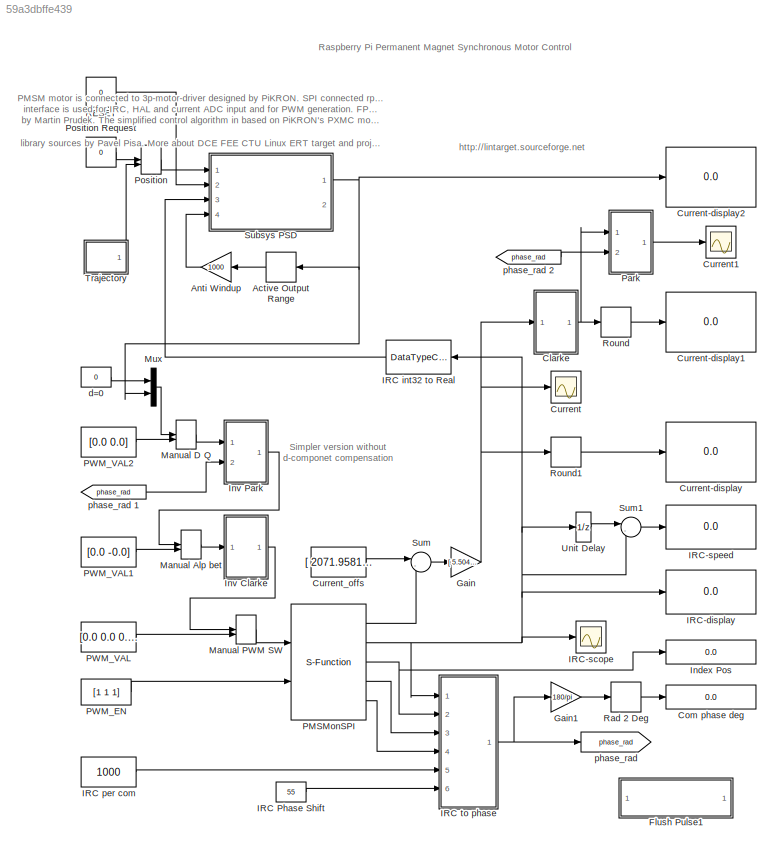
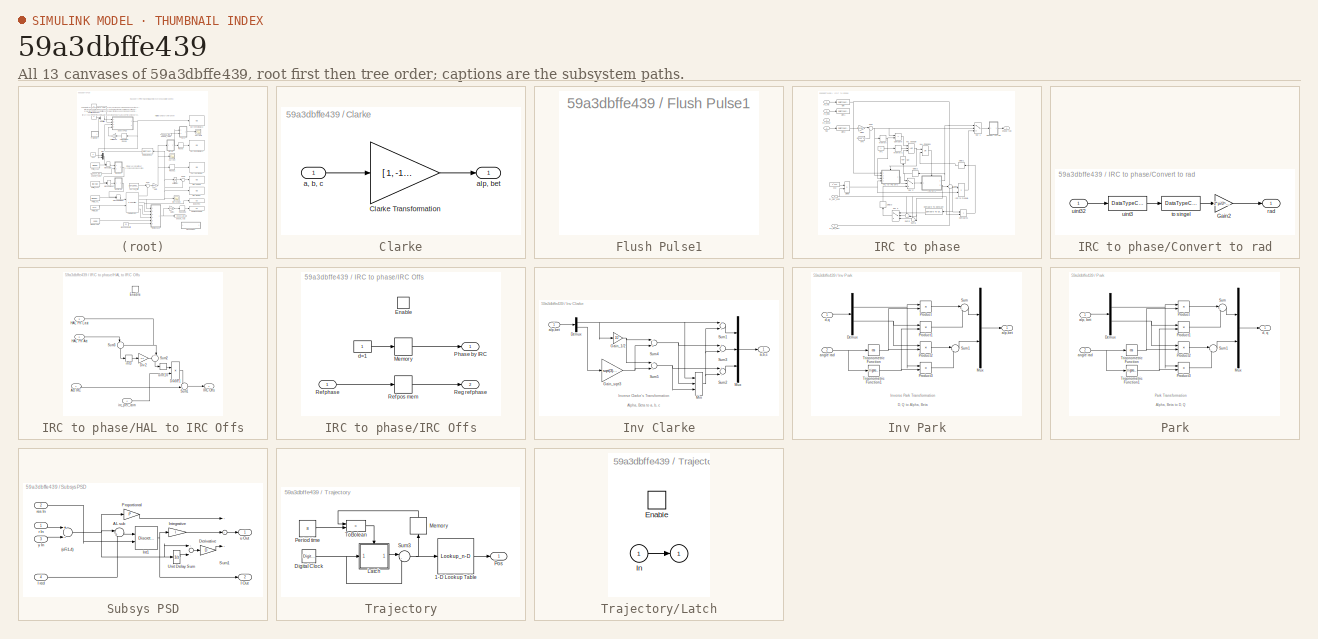
[diagram: thumbnail index - all 13 canvases of the model, root first then tree order]
MODEL slx_59a3dbffe439
KIND model
BLOCK [Constant]   RESET
  OpenFcn = if get_param(gcbh,'value')=='0' set_param(gcbh,'value','1'); else set_param(gcbh,'value','0'); end;
  Value = 0
BLOCK [DeadZone] Active Output Range
  LinearizeAsGain = off
  LowerValue = -1
  SaturateOnIntegerOverflow = off
  UpperValue = 1
BLOCK [Gain] Anti Windup
  Gain = 1000
  OutDataTypeStr = Inherit: Inherit via internal rule
  ParamDataTypeStr = Inherit: Inherit via internal rule
  SaturateOnIntegerOverflow = off
BLOCK [SubSystem] Clarke
  FunctionWithSeparateData = off
  MaskHideContents = off
  MinAlgLoopOccurrences = off
  Opaque = off
  Ports = [1, 1]
  PropExecContextOutsideSubsystem = off
  RTWSystemCode = Auto
  RequestExecContextInheritance = off
BLOCK [Gain] Clarke/Clarke Transformation
  Gain = [ 1, -1/2, -1/2 ; 0, sqrt(3)/2, -sqrt(3)/2 ]
  Multiplication = Matrix(K*u)
  OutDataTypeStr = Inherit: Inherit via internal rule
  ParamDataTypeStr = Inherit: Inherit via internal rule
  SaturateOnIntegerOverflow = off
BLOCK [Inport] Clarke/a, b, c
  IconDisplay = Port number
BLOCK [Outport] Clarke/alp, bet
  IconDisplay = Port number
BLOCK [Display] Com phase deg
  Decimation = 1
  Format = long
  Lockdown = off
  Ports = [1]
BLOCK [Scope] Current
  DataFormat = StructureWithTime
  Floating = off
  MaxDataPoints = 200000
  NumInputPorts = 1
  Ports = [1]
  SampleTime = 0
  SaveName = ScopeData2
  ShowLegends = off
  TimeRange = 20
  YMax = 275
  YMin = -275
BLOCK [Display] Current-display
  Decimation = 1
  Format = long
  Lockdown = off
  Ports = [1]
BLOCK [Display] Current-display1
  Decimation = 1
  Format = long
  Lockdown = off
  Ports = [1]
BLOCK [Display] Current-display2
  Decimation = 1
  Format = long
  Lockdown = off
  Ports = [1]
BLOCK [Scope] Current1
  DataFormat = StructureWithTime
  Floating = off
  MaxDataPoints = 200000
  NumInputPorts = 1
  Ports = [1]
  SampleTime = 0
  ShowLegends = off
  TimeRange = 20
  YMax = 700
  YMin = -600
BLOCK [Constant] Current_offs
  Value = [ 2071.958167  2076.867972  2051.43292 ]
BLOCK [SubSystem] Flush Pulse1
  FunctionWithSeparateData = off
  MaskHideContents = off
  MinAlgLoopOccurrences = off
  Opaque = off
  OpenFcn = system(['./run_model_pmsm.sh ', get_param(bdroot(gcbh),'name'),' ', get_param(gcbh,'target_ip_address')]);
  Ports = []
  PropExecContextOutsideSubsystem = off
  RTWSystemCode = Auto
  RequestExecContextInheritance = off
BLOCK [Gain] Gain
  Gain = [ 5.50425994  3.11506975  4.90506763; -3.85821303 -3.13377586 -4.83510487; -1.64604691  0.0187061  -0.06996276]
  Multiplication = Matrix(K*u)
  OutDataTypeStr = Inherit: Inherit via internal rule
  ParamDataTypeStr = Inherit: Inherit via internal rule
  SaturateOnIntegerOverflow = off
BLOCK [Gain] Gain1
  Gain = 180/pi
  OutDataTypeStr = Inherit: Inherit via internal rule
  ParamDataTypeStr = Inherit: Inherit via internal rule
  SaturateOnIntegerOverflow = off
BLOCK [Constant] IRC Phase Shift
  Value = 55
BLOCK [DataTypeConversion] IRC int32 to Real
  RndMeth = Floor
  SaturateOnIntegerOverflow = off
BLOCK [Constant] IRC per com
  OutDataTypeStr = uint32
  Value = 1000
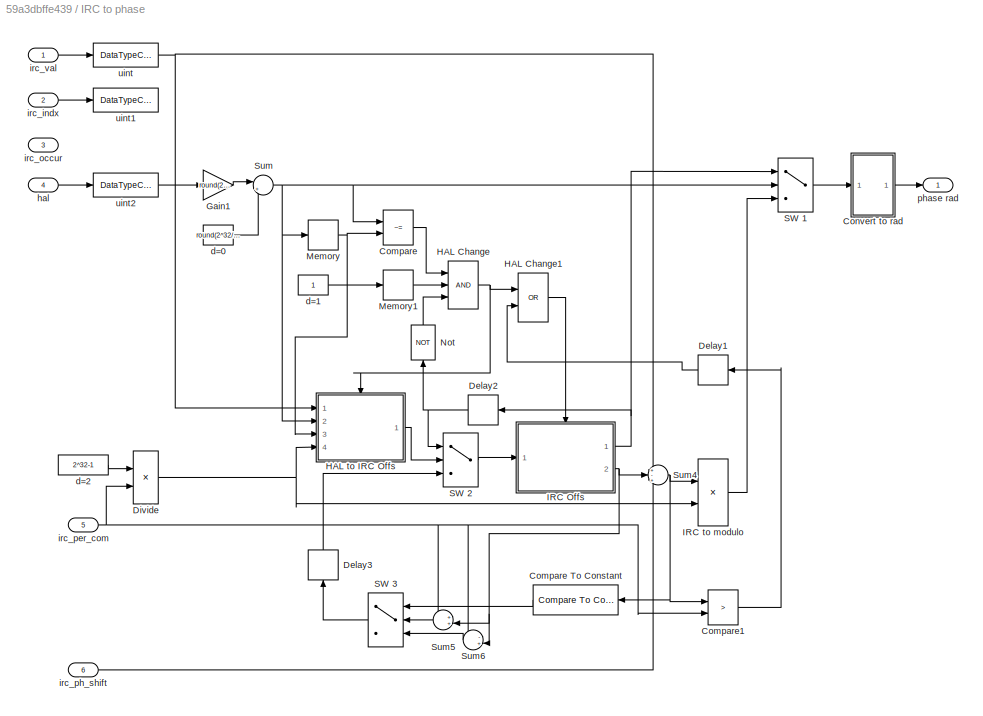
BLOCK [SubSystem] IRC to phase
  FunctionWithSeparateData = off
  MaskHideContents = off
  MinAlgLoopOccurrences = off
  Opaque = off
  Ports = [6, 1]
  PropExecContextOutsideSubsystem = off
  RTWSystemCode = Auto
  RequestExecContextInheritance = off
BLOCK [RelationalOperator] IRC to phase/Compare
  Operator = ~=
  OutDataTypeStr = boolean
  Ports = [2, 1]
BLOCK [Reference] IRC to phase/Compare To Constant  REF=simulink/Logic and Bit
Operations/Compare
To Constant
  OutDataTypeStr = boolean
  Ports = [1, 1]
  SourceBlock = simulink/Logic and Bit\nOperations/Compare\nTo Constant
  SourceType = Compare To Constant
  ZeroCross = on
  const = 2^31
  relop = >=
BLOCK [RelationalOperator] IRC to phase/Compare1
  Operator = >
  OutDataTypeStr = boolean
  Ports = [2, 1]
BLOCK [SubSystem] IRC to phase/Convert to rad
  FunctionWithSeparateData = off
  MaskHideContents = off
  MinAlgLoopOccurrences = off
  Opaque = off
  Ports = [1, 1]
  PropExecContextOutsideSubsystem = off
  RTWSystemCode = Auto
  RequestExecContextInheritance = off
BLOCK [Gain] IRC to phase/Convert to rad/Gain2
  Gain = 2*pi/2^32
  OutDataTypeStr = single
  ParamDataTypeStr = Inherit: Inherit via internal rule
  SaturateOnIntegerOverflow = off
BLOCK [Outport] IRC to phase/Convert to rad/rad
  IconDisplay = Port number
BLOCK [DataTypeConversion] IRC to phase/Convert to rad/to singel
  OutDataTypeStr = single
  RndMeth = Simplest
  SaturateOnIntegerOverflow = off
BLOCK [DataTypeConversion] IRC to phase/Convert to rad/uint3
  OutDataTypeStr = uint32
  RndMeth = Simplest
  SaturateOnIntegerOverflow = off
BLOCK [Inport] IRC to phase/Convert to rad/uint32
  IconDisplay = Port number
BLOCK [Memory] IRC to phase/Delay1
BLOCK [Memory] IRC to phase/Delay2
BLOCK [Memory] IRC to phase/Delay3
BLOCK [Product] IRC to phase/Divide
  InputSameDT = off
  Inputs = */
  OutDataTypeStr = uint32
  Ports = [2, 1]
  RndMeth = Floor
  SaturateOnIntegerOverflow = off
BLOCK [Gain] IRC to phase/Gain1
  Gain = round(2^32 / 6)
  OutDataTypeStr = uint32
  ParamDataTypeStr = Inherit: Inherit via internal rule
  SaturateOnIntegerOverflow = off
BLOCK [Logic] IRC to phase/HAL Change
  AllPortsSameDT = off
  Inputs = 3
  OutDataTypeStr = boolean
  Ports = [3, 1]
BLOCK [Logic] IRC to phase/HAL Change1
  AllPortsSameDT = off
  Operator = OR
  OutDataTypeStr = boolean
  Ports = [2, 1]
BLOCK [SubSystem] IRC to phase/HAL to IRC Offs
  FunctionWithSeparateData = off
  MaskHideContents = off
  MinAlgLoopOccurrences = off
  Opaque = off
  Ports = [4, 1, 1]
  PropExecContextOutsideSubsystem = off
  RTWSystemCode = Auto
  RequestExecContextInheritance = off
BLOCK [Inport] IRC to phase/HAL to IRC Offs/Act IRC
  IconDisplay = Port number
BLOCK [Gain] IRC to phase/HAL to IRC Offs/Div 2
  Gain = 1/2
  OutDataTypeStr = int32
  ParamDataTypeStr = Inherit: Inherit via internal rule
  SaturateOnIntegerOverflow = off
BLOCK [Product] IRC to phase/HAL to IRC Offs/Divide1
  InputSameDT = off
  Inputs = */
  OutDataTypeStr = uint32
  Ports = [2, 1]
  RndMeth = Floor
  SaturateOnIntegerOverflow = off
BLOCK [EnablePort] IRC to phase/HAL to IRC Offs/Enable
  Ports = []
BLOCK [Inport] IRC to phase/HAL to IRC Offs/HAL Ph Act
  IconDisplay = Port number
  Port = 2
BLOCK [Inport] IRC to phase/HAL to IRC Offs/HAL Ph Last
  IconDisplay = Port number
  Port = 3
BLOCK [Outport] IRC to phase/HAL to IRC Offs/IRC Offs
  IconDisplay = Port number
BLOCK [Sum] IRC to phase/HAL to IRC Offs/Sum1
  AccumDataTypeStr = uint32
  IconShape = round
  InputSameDT = off
  Inputs = -+|
  OutDataTypeStr = uint32
  Ports = [2, 1]
  SaturateOnIntegerOverflow = off
BLOCK [Sum] IRC to phase/HAL to IRC Offs/Sum2
  AccumDataTypeStr = uint32
  IconShape = round
  InputSameDT = off
  Inputs = ++|
  OutDataTypeStr = uint32
  Ports = [2, 1]
  SaturateOnIntegerOverflow = off
BLOCK [Sum] IRC to phase/HAL to IRC Offs/Sum3
  AccumDataTypeStr = int32
  IconShape = round
  InputSameDT = off
  Inputs = |+-
  OutDataTypeStr = uint32
  Ports = [2, 1]
  SaturateOnIntegerOverflow = off
BLOCK [DataTypeConversion] IRC to phase/HAL to IRC Offs/int3
  OutDataTypeStr = int32
  RndMeth = Simplest
  SaturateOnIntegerOverflow = off
BLOCK [Inport] IRC to phase/HAL to IRC Offs/irc_per_com
  IconDisplay = Port number
  Port = 4
BLOCK [DataTypeConversion] IRC to phase/HAL to IRC Offs/uint10
  OutDataTypeStr = uint32
  RndMeth = Simplest
  SaturateOnIntegerOverflow = off
BLOCK [SubSystem] IRC to phase/IRC Offs
  FunctionWithSeparateData = off
  MaskHideContents = off
  MinAlgLoopOccurrences = off
  Opaque = off
  Ports = [1, 2, 1]
  PropExecContextOutsideSubsystem = off
  RTWSystemCode = Auto
  RequestExecContextInheritance = off
  TreatAsAtomicUnit = on
BLOCK [EnablePort] IRC to phase/IRC Offs/Enable
  Ports = []
BLOCK [Memory] IRC to phase/IRC Offs/Memory
  InheritSampleTime = on
BLOCK [Outport] IRC to phase/IRC Offs/Phase by IRC
  IconDisplay = Port number
BLOCK [Inport] IRC to phase/IRC Offs/Ref phase
  IconDisplay = Port number
BLOCK [Memory] IRC to phase/IRC Offs/Ref pos mem
  InheritSampleTime = on
BLOCK [Outport] IRC to phase/IRC Offs/Reg ref phase
  IconDisplay = Port number
  Port = 2
BLOCK [Constant] IRC to phase/IRC Offs/d=1
  OutDataTypeStr = uint32
BLOCK [Product] IRC to phase/IRC to modulo
  InputSameDT = off
  OutDataTypeStr = uint32
  Ports = [2, 1]
  RndMeth = Floor
  SaturateOnIntegerOverflow = off
BLOCK [Memory] IRC to phase/Memory
BLOCK [Memory] IRC to phase/Memory1
BLOCK [Logic] IRC to phase/Not
  AllPortsSameDT = off
  Inputs = 1
  Operator = NOT
  OutDataTypeStr = boolean
  Ports = [1, 1]
BLOCK [MultiPortSwitch] IRC to phase/SW 1
  DataPortOrder = Zero-based contiguous
  InputSameDT = off
  Inputs = 2
  OutDataTypeStr = uint32
  Ports = [3, 1]
  SaturateOnIntegerOverflow = off
BLOCK [MultiPortSwitch] IRC to phase/SW 2
  DataPortOrder = Zero-based contiguous
  InputSameDT = off
  Inputs = 2
  OutDataTypeStr = uint32
  Ports = [3, 1]
  SaturateOnIntegerOverflow = off
BLOCK [MultiPortSwitch] IRC to phase/SW 3
  DataPortOrder = Zero-based contiguous
  InputSameDT = off
  Inputs = 2
  OutDataTypeStr = uint32
  Ports = [3, 1]
  SaturateOnIntegerOverflow = off
BLOCK [Sum] IRC to phase/Sum
  AccumDataTypeStr = uint32
  IconShape = round
  InputSameDT = off
  Inputs = |++
  OutDataTypeStr = uint32
  Ports = [2, 1]
  SaturateOnIntegerOverflow = off
BLOCK [Sum] IRC to phase/Sum4
  AccumDataTypeStr = int32
  IconShape = round
  InputSameDT = off
  Inputs = +-+
  OutDataTypeStr = uint32
  Ports = [3, 1]
  SaturateOnIntegerOverflow = off
BLOCK [Sum] IRC to phase/Sum5
  AccumDataTypeStr = int32
  IconShape = round
  InputSameDT = off
  Inputs = ++|
  OutDataTypeStr = uint32
  Ports = [2, 1]
  SaturateOnIntegerOverflow = off
BLOCK [Sum] IRC to phase/Sum6
  AccumDataTypeStr = int32
  IconShape = round
  InputSameDT = off
  Inputs = -+|
  OutDataTypeStr = uint32
  Ports = [2, 1]
  SaturateOnIntegerOverflow = off
BLOCK [Constant] IRC to phase/d=0
  OutDataTypeStr = uint32
  Value = round(2^32/12*7)
BLOCK [Constant] IRC to phase/d=1
  OutDataTypeStr = boolean
BLOCK [Constant] IRC to phase/d=2
  OutDataTypeStr = uint32
  Value = 2^32-1
BLOCK [Inport] IRC to phase/hal
  IconDisplay = Port number
  Port = 4
BLOCK [Inport] IRC to phase/irc_indx
  IconDisplay = Port number
  Port = 2
BLOCK [Inport] IRC to phase/irc_occur
  IconDisplay = Port number
  Port = 3
BLOCK [Inport] IRC to phase/irc_per_com
  IconDisplay = Port number
  Port = 5
BLOCK [Inport] IRC to phase/irc_ph_shift
  IconDisplay = Port number
  Port = 6
BLOCK [Inport] IRC to phase/irc_val
  IconDisplay = Port number
BLOCK [Outport] IRC to phase/phase rad
  IconDisplay = Port number
BLOCK [DataTypeConversion] IRC to phase/uint
  OutDataTypeStr = uint32
  RndMeth = Simplest
  SaturateOnIntegerOverflow = off
BLOCK [DataTypeConversion] IRC to phase/uint1
  OutDataTypeStr = uint32
  RndMeth = Simplest
  SaturateOnIntegerOverflow = off
BLOCK [DataTypeConversion] IRC to phase/uint2
  OutDataTypeStr = uint32
  RndMeth = Simplest
  SaturateOnIntegerOverflow = off
BLOCK [Display] IRC-display
  Decimation = 1
  Format = long
  Lockdown = off
  Ports = [1]
BLOCK [Scope] IRC-scope
  DataFormat = StructureWithTime
  Floating = off
  MaxDataPoints = 200000
  NumInputPorts = 1
  Ports = [1]
  SampleTime = 0
  SaveName = ScopeData1
  ShowLegends = off
  TimeRange = 20
  YMax = 2100
  YMin = -2100
BLOCK [Display] IRC-speed
  Decimation = 1
  Format = long
  Lockdown = off
  Ports = [1]
BLOCK [Display] Index Pos
  Decimation = 1
  Format = long
  Lockdown = off
  Ports = [1]
BLOCK [SubSystem] Inv Clarke
  FunctionWithSeparateData = off
  MaskHideContents = off
  MinAlgLoopOccurrences = off
  Opaque = off
  Ports = [1, 1]
  PropExecContextOutsideSubsystem = off
  RTWSystemCode = Auto
  RequestExecContextInheritance = off
BLOCK [Demux] Inv Clarke/Demux
  DisplayOption = bar
  Outputs = 2
  Ports = [1, 2]
BLOCK [Gain] Inv Clarke/Gain_1//2
  Gain = 1/2
  OutDataTypeStr = Inherit: Inherit via internal rule
  ParamDataTypeStr = Inherit: Inherit via internal rule
  SaturateOnIntegerOverflow = off
BLOCK [Gain] Inv Clarke/Gain_sqrt3
  Gain = sqrt(3)/2
  OutDataTypeStr = Inherit: Inherit via internal rule
  ParamDataTypeStr = Inherit: Inherit via internal rule
  SaturateOnIntegerOverflow = off
BLOCK [MinMax] Inv Clarke/Min
  InputSameDT = off
  Inputs = 3
  Ports = [3, 1]
  SaturateOnIntegerOverflow = off
BLOCK [Mux] Inv Clarke/Mux
  DisplayOption = bar
  Inputs = 3
  Ports = [3, 1]
BLOCK [Sum] Inv Clarke/Sum1
  InputSameDT = off
  Inputs = +-
  OutDataTypeStr = Inherit: Inherit via internal rule
  Ports = [2, 1]
  SaturateOnIntegerOverflow = off
BLOCK [Sum] Inv Clarke/Sum2
  InputSameDT = off
  Inputs = +-
  OutDataTypeStr = Inherit: Inherit via internal rule
  Ports = [2, 1]
  SaturateOnIntegerOverflow = off
BLOCK [Sum] Inv Clarke/Sum3
  InputSameDT = off
  Inputs = +-
  OutDataTypeStr = Inherit: Inherit via internal rule
  Ports = [2, 1]
  SaturateOnIntegerOverflow = off
BLOCK [Sum] Inv Clarke/Sum4
  InputSameDT = off
  Inputs = -+
  OutDataTypeStr = Inherit: Inherit via internal rule
  Ports = [2, 1]
  SaturateOnIntegerOverflow = off
BLOCK [Sum] Inv Clarke/Sum5
  InputSameDT = off
  Inputs = --
  OutDataTypeStr = Inherit: Inherit via internal rule
  Ports = [2, 1]
  SaturateOnIntegerOverflow = off
BLOCK [Outport] Inv Clarke/a,b,c
  IconDisplay = Port number
BLOCK [Inport] Inv Clarke/alp,bet
  IconDisplay = Port number
BLOCK [SubSystem] Inv Park
  FunctionWithSeparateData = off
  MaskHideContents = off
  MinAlgLoopOccurrences = off
  Opaque = off
  Ports = [2, 1]
  PropExecContextOutsideSubsystem = off
  RTWSystemCode = Auto
  RequestExecContextInheritance = off
BLOCK [Demux] Inv Park/Demux
  DisplayOption = bar
  Outputs = 2
  Ports = [1, 2]
BLOCK [Mux] Inv Park/Mux
  DisplayOption = bar
  Inputs = 2
  Ports = [2, 1]
BLOCK [Product] Inv Park/Product
  InputSameDT = off
  OutDataTypeStr = Inherit: Inherit via internal rule
  Ports = [2, 1]
  RndMeth = Floor
  SaturateOnIntegerOverflow = off
BLOCK [Product] Inv Park/Product1
  InputSameDT = off
  OutDataTypeStr = Inherit: Inherit via internal rule
  Ports = [2, 1]
  RndMeth = Floor
  SaturateOnIntegerOverflow = off
BLOCK [Product] Inv Park/Product2
  InputSameDT = off
  OutDataTypeStr = Inherit: Inherit via internal rule
  Ports = [2, 1]
  RndMeth = Floor
  SaturateOnIntegerOverflow = off
BLOCK [Product] Inv Park/Product3
  InputSameDT = off
  OutDataTypeStr = Inherit: Inherit via internal rule
  Ports = [2, 1]
  RndMeth = Floor
  SaturateOnIntegerOverflow = off
BLOCK [Sum] Inv Park/Sum
  IconShape = round
  InputSameDT = off
  Inputs = |+-
  OutDataTypeStr = Inherit: Inherit via internal rule
  Ports = [2, 1]
  SaturateOnIntegerOverflow = off
BLOCK [Sum] Inv Park/Sum1
  IconShape = round
  InputSameDT = off
  Inputs = |++
  OutDataTypeStr = Inherit: Inherit via internal rule
  Ports = [2, 1]
  SaturateOnIntegerOverflow = off
BLOCK [Trigonometry] Inv Park/Trigonometric Function
  Operator = cos
  Ports = [1, 1]
BLOCK [Trigonometry] Inv Park/Trigonometric Function1
  Ports = [1, 1]
BLOCK [Outport] Inv Park/alp,bet
  IconDisplay = Port number
BLOCK [Inport] Inv Park/angle rad
  IconDisplay = Port number
  Port = 2
BLOCK [Inport] Inv Park/d,q
  IconDisplay = Port number
BLOCK [ManualSwitch] Manual Alp bet
BLOCK [ManualSwitch] Manual D Q
BLOCK [ManualSwitch] Manual PWM SW
BLOCK [Mux] Mux
  DisplayOption = bar
  Inputs = 2
  Ports = [2, 1]
BLOCK [S-Function] PMSMonSPI
  EnableBusSupport = off
  FunctionName = sfPMSMonSPI
  Parameters = Ts
  Ports = [2, 5]
BLOCK [Constant] PWM_EN
  Value = [1 1 1]
BLOCK [Constant] PWM_VAL
  Value = [0.0 0.0 0.0]
BLOCK [Constant] PWM_VAL1
  Value = [0.0 -0.0]
BLOCK [Constant] PWM_VAL2
  Value = [0.0 0.0]
BLOCK [SubSystem] Park
  FunctionWithSeparateData = off
  MaskHideContents = off
  MinAlgLoopOccurrences = off
  Opaque = off
  Ports = [2, 1]
  PropExecContextOutsideSubsystem = off
  RTWSystemCode = Auto
  RequestExecContextInheritance = off
BLOCK [Demux] Park/Demux
  DisplayOption = bar
  Outputs = 2
  Ports = [1, 2]
BLOCK [Mux] Park/Mux
  DisplayOption = bar
  Inputs = 2
  Ports = [2, 1]
BLOCK [Product] Park/Product
  InputSameDT = off
  OutDataTypeStr = Inherit: Inherit via internal rule
  Ports = [2, 1]
  RndMeth = Floor
  SaturateOnIntegerOverflow = off
BLOCK [Product] Park/Product1
  InputSameDT = off
  OutDataTypeStr = Inherit: Inherit via internal rule
  Ports = [2, 1]
  RndMeth = Floor
  SaturateOnIntegerOverflow = off
BLOCK [Product] Park/Product2
  InputSameDT = off
  OutDataTypeStr = Inherit: Inherit via internal rule
  Ports = [2, 1]
  RndMeth = Floor
  SaturateOnIntegerOverflow = off
BLOCK [Product] Park/Product3
  InputSameDT = off
  OutDataTypeStr = Inherit: Inherit via internal rule
  Ports = [2, 1]
  RndMeth = Floor
  SaturateOnIntegerOverflow = off
BLOCK [Sum] Park/Sum
  IconShape = round
  InputSameDT = off
  Inputs = |++
  OutDataTypeStr = Inherit: Inherit via internal rule
  Ports = [2, 1]
  SaturateOnIntegerOverflow = off
BLOCK [Sum] Park/Sum1
  IconShape = round
  InputSameDT = off
  Inputs = |+-
  OutDataTypeStr = Inherit: Inherit via internal rule
  Ports = [2, 1]
  SaturateOnIntegerOverflow = off
BLOCK [Trigonometry] Park/Trigonometric Function
  Operator = cos
  Ports = [1, 1]
BLOCK [Trigonometry] Park/Trigonometric Function1
  Ports = [1, 1]
BLOCK [Inport] Park/alp, bet
  IconDisplay = Port number
BLOCK [Inport] Park/angle rad
  IconDisplay = Port number
  Port = 2
BLOCK [Outport] Park/d, q
  IconDisplay = Port number
BLOCK [ManualSwitch] Position
  CurrentSetting = 0
BLOCK [Constant] Position Request
  Value = 0
BLOCK [Rounding] Rad 2 Deg
  Operator = round
BLOCK [Rounding] Round
  Operator = round
BLOCK [Rounding] Round1
  Operator = round
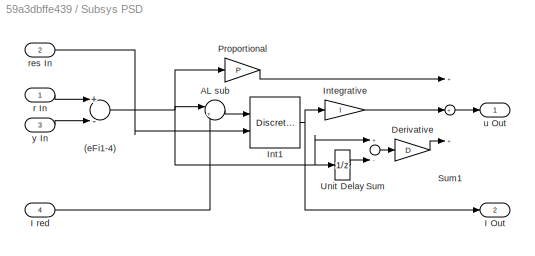
BLOCK [SubSystem] Subsys PSD
  FunctionWithSeparateData = off
  MaskHideContents = off
  MinAlgLoopOccurrences = off
  Opaque = off
  Ports = [4, 2]
  PropExecContextOutsideSubsystem = off
  RTWSystemCode = Auto
  RequestExecContextInheritance = off
BLOCK [Gain] Subsys PSD/  Derivative
  Gain = D
BLOCK [Sum] Subsys PSD/(eFi1-4)
  Inputs = +-
  Ports = [2, 1]
BLOCK [Sum] Subsys PSD/AL sub
  IconShape = round
  Inputs = |+-
  Ports = [2, 1]
BLOCK [Outport] Subsys PSD/I Out
  IconDisplay = Port number
  Port = 2
BLOCK [Inport] Subsys PSD/I red
  IconDisplay = Port number
  Port = 4
BLOCK [DiscreteIntegrator] Subsys PSD/Int1
  ExternalReset = level
  ICPrevOutput = DiscIntNeverNeededParam
  ICPrevScaledInput = DiscIntNeverNeededParam
  Ports = [2, 1]
  SampleTime = -1
BLOCK [Gain] Subsys PSD/Integrative
  Gain = I
BLOCK [Gain] Subsys PSD/Proportional
  Gain = P
BLOCK [Sum] Subsys PSD/Sum
  Inputs = +-
  Ports = [2, 1]
BLOCK [Sum] Subsys PSD/Sum1
  Inputs = +++
  Ports = [3, 1]
BLOCK [UnitDelay] Subsys PSD/Unit Delay
  SampleTime = Ts
BLOCK [Inport] Subsys PSD/r In
  IconDisplay = Port number
  SampleTime = Ts
BLOCK [Inport] Subsys PSD/res In
  IconDisplay = Port number
  Port = 2
BLOCK [Outport] Subsys PSD/u Out
  IconDisplay = Port number
BLOCK [Inport] Subsys PSD/y In
  IconDisplay = Port number
  Port = 3
  SampleTime = Ts
BLOCK [Sum] Sum
  IconShape = round
  InputSameDT = off
  Inputs = |-+
  OutDataTypeStr = Inherit: Inherit via internal rule
  Ports = [2, 1]
  SaturateOnIntegerOverflow = off
BLOCK [Sum] Sum1
  IconShape = round
  InputSameDT = off
  Inputs = |-+
  OutDataTypeStr = Inherit: Inherit via internal rule
  Ports = [2, 1]
  SaturateOnIntegerOverflow = off
BLOCK [SubSystem] Trajectory
  FunctionWithSeparateData = off
  MaskHideContents = off
  MinAlgLoopOccurrences = off
  Opaque = off
  Ports = [0, 1]
  PropExecContextOutsideSubsystem = off
  RTWSystemCode = Auto
  RequestExecContextInheritance = off
BLOCK [Lookup_n-D] Trajectory/1-D Lookup Table
  BreakpointsForDimension1 = [0 3      5     6     6.1 8]
  NumberOfTableDimensions = 1
  Ports = [1, 1]
  RndMeth = Simplest
  Table = [0 2000 500 500 0    0]
BLOCK [DigitalClock] Trajectory/Digital Clock
  SampleTime = 0.002
BLOCK [SubSystem] Trajectory/Latch
  FunctionWithSeparateData = off
  MaskHideContents = off
  MinAlgLoopOccurrences = off
  Opaque = off
  Ports = [1, 1, 1]
  PropExecContextOutsideSubsystem = off
  RTWSystemCode = Auto
  RequestExecContextInheritance = off
  TreatAsAtomicUnit = on
BLOCK [Outport] Trajectory/Latch/ 
  IconDisplay = Port number
  InitialOutput = 0
BLOCK [EnablePort] Trajectory/Latch/Enable
  Ports = []
BLOCK [Inport] Trajectory/Latch/In
  IconDisplay = Port number
BLOCK [Memory] Trajectory/Memory
BLOCK [Constant] Trajectory/Period time
  Value = 8
BLOCK [Outport] Trajectory/Pos
  IconDisplay = Port number
BLOCK [Sum] Trajectory/Sum3
  IconShape = round
  Inputs = |-+
  Ports = [2, 1]
BLOCK [RelationalOperator] Trajectory/ToBolean
  InputSameDT = off
  Operator = >
  Ports = [2, 1]
BLOCK [UnitDelay] Unit Delay
  SampleTime = -1
BLOCK [Constant] d=0
  Value = 0
BLOCK [Goto] phase_rad
  GotoTag = phase_rad
BLOCK [From] phase_rad 1
  GotoTag = phase_rad
BLOCK [From] phase_rad 2
  GotoTag = phase_rad
ANNOTATION (root): PMSM motor is connected to 3p-motor-driver designed by PiKRON. SPI connected rpi-mi-1 FPGA interface is used for IRC, HAL and current ADC input and for PWM generation. FPGA design by Martin Prudek. The simplified control algorithm in based on PiKRON's PXMC motion control library sources by Pavel Pisa. More about DCE FEE CTU Linux ERT target and projects at
ANNOTATION (root): Raspberry Pi Permanent Magnet Synchronous Motor Control
ANNOTATION (root): Simpler version without d-componet compensation
ANNOTATION (root): http://lintarget.sourceforge.net
ANNOTATION Inv Clarke: Alpha, Beta to a, b, c
ANNOTATION Inv Clarke: Inverse Clarke's Transformation
ANNOTATION Inv Park: D, Q to Alpha, Beta
ANNOTATION Inv Park: Inverse Park Transformation
ANNOTATION Park: Alpha, Beta to D, Q
ANNOTATION Park: Park Transformation
LINE   RESET:1 -> Subsys PSD:2
LINE Active Output Range:1 -> Anti Windup:1
LINE Anti Windup:1 -> Subsys PSD:4
LINE Clarke/Clarke Transformation:1 -> Clarke/alp, bet:1
LINE Clarke/a, b, c:1 -> Clarke/Clarke Transformation:1
NET Clarke:1 -> Park:1, Round:1
LINE Current_offs:1 -> Sum:1
LINE Gain1:1 -> Rad 2 Deg:1
NET Gain:1 -> Clarke:1, Current:1, Round1:1
LINE IRC Phase Shift:1 -> IRC to phase:6
LINE IRC int32 to Real:1 -> Subsys PSD:3
LINE IRC per com:1 -> IRC to phase:5
LINE IRC to phase/Compare To Constant:1 -> IRC to phase/SW 3:1
LINE IRC to phase/Compare1:1 -> IRC to phase/Delay1:1
LINE IRC to phase/Compare:1 -> IRC to phase/HAL Change:1
LINE IRC to phase/Convert to rad/Gain2:1 -> IRC to phase/Convert to rad/rad:1
LINE IRC to phase/Convert to rad/to singel:1 -> IRC to phase/Convert to rad/Gain2:1
LINE IRC to phase/Convert to rad/uint32:1 -> IRC to phase/Convert to rad/uint3:1
LINE IRC to phase/Convert to rad/uint3:1 -> IRC to phase/Convert to rad/to singel:1
LINE IRC to phase/Convert to rad:1 -> IRC to phase/phase rad:1
LINE IRC to phase/Delay1:1 -> IRC to phase/HAL Change1:2
NET IRC to phase/Delay2:1 -> IRC to phase/Not:1, IRC to phase/SW 2:1
LINE IRC to phase/Delay3:1 -> IRC to phase/SW 2:3
NET IRC to phase/Divide:1 -> IRC to phase/HAL to IRC Offs:4, IRC to phase/IRC to modulo:2
LINE IRC to phase/Gain1:1 -> IRC to phase/Sum:1
LINE IRC to phase/HAL Change1:1 -> IRC to phase/IRC Offs:enable
NET IRC to phase/HAL Change:1 -> IRC to phase/HAL Change1:1, IRC to phase/HAL to IRC Offs:enable
LINE IRC to phase/HAL to IRC Offs/Act IRC:1 -> IRC to phase/HAL to IRC Offs/Sum1:2
LINE IRC to phase/HAL to IRC Offs/Div 2:1 -> IRC to phase/HAL to IRC Offs/Sum2:1
LINE IRC to phase/HAL to IRC Offs/Divide1:1 -> IRC to phase/HAL to IRC Offs/Sum1:1
LINE IRC to phase/HAL to IRC Offs/HAL Ph Act:1 -> IRC to phase/HAL to IRC Offs/Sum3:1
NET IRC to phase/HAL to IRC Offs/HAL Ph Last:1 -> IRC to phase/HAL to IRC Offs/Sum2:2, IRC to phase/HAL to IRC Offs/Sum3:2
LINE IRC to phase/HAL to IRC Offs/Sum1:1 -> IRC to phase/HAL to IRC Offs/IRC Offs:1
LINE IRC to phase/HAL to IRC Offs/Sum2:1 -> IRC to phase/HAL to IRC Offs/uint10:1
LINE IRC to phase/HAL to IRC Offs/Sum3:1 -> IRC to phase/HAL to IRC Offs/int3:1
LINE IRC to phase/HAL to IRC Offs/int3:1 -> IRC to phase/HAL to IRC Offs/Div 2:1
LINE IRC to phase/HAL to IRC Offs/irc_per_com:1 -> IRC to phase/HAL to IRC Offs/Divide1:2
LINE IRC to phase/HAL to IRC Offs/uint10:1 -> IRC to phase/HAL to IRC Offs/Divide1:1
LINE IRC to phase/HAL to IRC Offs:1 -> IRC to phase/SW 2:2
LINE IRC to phase/IRC Offs/Memory:1 -> IRC to phase/IRC Offs/Phase by IRC:1
LINE IRC to phase/IRC Offs/Ref phase:1 -> IRC to phase/IRC Offs/Ref pos mem:1
LINE IRC to phase/IRC Offs/Ref pos mem:1 -> IRC to phase/IRC Offs/Reg ref phase:1
LINE IRC to phase/IRC Offs/d=1:1 -> IRC to phase/IRC Offs/Memory:1
NET IRC to phase/IRC Offs:1 -> IRC to phase/Delay2:1, IRC to phase/SW 1:1
NET IRC to phase/IRC Offs:2 -> IRC to phase/Sum4:2, IRC to phase/Sum5:2, IRC to phase/Sum6:2
LINE IRC to phase/IRC to modulo:1 -> IRC to phase/SW 1:3
LINE IRC to phase/Memory1:1 -> IRC to phase/HAL Change:2
NET IRC to phase/Memory:1 -> IRC to phase/Compare:2, IRC to phase/HAL to IRC Offs:3
LINE IRC to phase/Not:1 -> IRC to phase/HAL Change:3
LINE IRC to phase/SW 1:1 -> IRC to phase/Convert to rad:1
LINE IRC to phase/SW 2:1 -> IRC to phase/IRC Offs:1
LINE IRC to phase/SW 3:1 -> IRC to phase/Delay3:1
NET IRC to phase/Sum4:1 -> IRC to phase/Compare To Constant:1, IRC to phase/Compare1:1, IRC to phase/IRC to modulo:1
LINE IRC to phase/Sum5:1 -> IRC to phase/SW 3:2
LINE IRC to phase/Sum6:1 -> IRC to phase/SW 3:3
NET IRC to phase/Sum:1 -> IRC to phase/Compare:1, IRC to phase/HAL to IRC Offs:2, IRC to phase/Memory:1, IRC to phase/SW 1:2
LINE IRC to phase/d=0:1 -> IRC to phase/Sum:2
LINE IRC to phase/d=1:1 -> IRC to phase/Memory1:1
LINE IRC to phase/d=2:1 -> IRC to phase/Divide:1
LINE IRC to phase/hal:1 -> IRC to phase/uint2:1
LINE IRC to phase/irc_indx:1 -> IRC to phase/uint1:1
NET IRC to phase/irc_per_com:1 -> IRC to phase/Compare1:2, IRC to phase/Divide:2, IRC to phase/Sum5:1, IRC to phase/Sum6:1
LINE IRC to phase/irc_ph_shift:1 -> IRC to phase/Sum4:3
LINE IRC to phase/irc_val:1 -> IRC to phase/uint:1
LINE IRC to phase/uint2:1 -> IRC to phase/Gain1:1
NET IRC to phase/uint:1 -> IRC to phase/HAL to IRC Offs:1, IRC to phase/Sum4:1
NET IRC to phase:1 -> Gain1:1, phase_rad:1
NET Inv Clarke/Demux:1 -> Inv Clarke/Gain_1//2:1, Inv Clarke/Min:1, Inv Clarke/Sum1:1
LINE Inv Clarke/Demux:2 -> Inv Clarke/Gain_sqrt3:1
NET Inv Clarke/Gain_1//2:1 -> Inv Clarke/Sum4:1, Inv Clarke/Sum5:1
NET Inv Clarke/Gain_sqrt3:1 -> Inv Clarke/Sum4:2, Inv Clarke/Sum5:2
NET Inv Clarke/Min:1 -> Inv Clarke/Sum1:2, Inv Clarke/Sum2:2, Inv Clarke/Sum3:2
LINE Inv Clarke/Mux:1 -> Inv Clarke/a,b,c:1
LINE Inv Clarke/Sum1:1 -> Inv Clarke/Mux:1
LINE Inv Clarke/Sum2:1 -> Inv Clarke/Mux:3
LINE Inv Clarke/Sum3:1 -> Inv Clarke/Mux:2
NET Inv Clarke/Sum4:1 -> Inv Clarke/Min:2, Inv Clarke/Sum3:1
NET Inv Clarke/Sum5:1 -> Inv Clarke/Min:3, Inv Clarke/Sum2:1
LINE Inv Clarke/alp,bet:1 -> Inv Clarke/Demux:1
LINE Inv Clarke:1 -> Manual PWM SW:1
NET Inv Park/Demux:1 -> Inv Park/Product3:1, Inv Park/Product:1
NET Inv Park/Demux:2 -> Inv Park/Product1:1, Inv Park/Product2:1
LINE Inv Park/Mux:1 -> Inv Park/alp,bet:1
LINE Inv Park/Product1:1 -> Inv Park/Sum:2
LINE Inv Park/Product2:1 -> Inv Park/Sum1:1
LINE Inv Park/Product3:1 -> Inv Park/Sum1:2
LINE Inv Park/Product:1 -> Inv Park/Sum:1
LINE Inv Park/Sum1:1 -> Inv Park/Mux:2
LINE Inv Park/Sum:1 -> Inv Park/Mux:1
NET Inv Park/Trigonometric Function1:1 -> Inv Park/Product1:2, Inv Park/Product3:2
NET Inv Park/Trigonometric Function:1 -> Inv Park/Product2:2, Inv Park/Product:2
NET Inv Park/angle rad:1 -> Inv Park/Trigonometric Function1:1, Inv Park/Trigonometric Function:1
LINE Inv Park/d,q:1 -> Inv Park/Demux:1
LINE Inv Park:1 -> Manual Alp bet:1
LINE Manual Alp bet:1 -> Inv Clarke:1
LINE Manual D Q:1 -> Inv Park:1
LINE Manual PWM SW:1 -> PMSMonSPI:1
LINE Mux:1 -> Manual D Q:1
LINE PMSMonSPI:1 -> Sum:2
NET PMSMonSPI:2 -> IRC int32 to Real:1, IRC to phase:1, IRC-display:1, IRC-scope:1, Sum1:2, Unit Delay:1
NET PMSMonSPI:3 -> IRC to phase:2, Index Pos:1
LINE PMSMonSPI:4 -> IRC to phase:3
LINE PMSMonSPI:5 -> IRC to phase:4
LINE PWM_EN:1 -> PMSMonSPI:2
LINE PWM_VAL1:1 -> Manual Alp bet:2
LINE PWM_VAL2:1 -> Manual D Q:2
LINE PWM_VAL:1 -> Manual PWM SW:2
NET Park/Demux:1 -> Park/Product3:1, Park/Product:1
NET Park/Demux:2 -> Park/Product1:1, Park/Product2:1
LINE Park/Mux:1 -> Park/d, q:1
LINE Park/Product1:1 -> Park/Sum:2
LINE Park/Product2:1 -> Park/Sum1:1
LINE Park/Product3:1 -> Park/Sum1:2
LINE Park/Product:1 -> Park/Sum:1
LINE Park/Sum1:1 -> Park/Mux:2
LINE Park/Sum:1 -> Park/Mux:1
NET Park/Trigonometric Function1:1 -> Park/Product1:2, Park/Product3:2
NET Park/Trigonometric Function:1 -> Park/Product2:2, Park/Product:2
LINE Park/alp, bet:1 -> Park/Demux:1
NET Park/angle rad:1 -> Park/Trigonometric Function1:1, Park/Trigonometric Function:1
LINE Park:1 -> Current1:1
LINE Position Request:1 -> Position:1
LINE Position:1 -> Subsys PSD:1
LINE Rad 2 Deg:1 -> Com phase deg:1
LINE Round1:1 -> Current-display:1
LINE Round:1 -> Current-display1:1
LINE Subsys PSD/  Derivative:1 -> Subsys PSD/Sum1:3
NET Subsys PSD/(eFi1-4):1 -> Subsys PSD/AL sub:1, Subsys PSD/Proportional:1, Subsys PSD/Sum:1, Subsys PSD/Unit Delay:1
LINE Subsys PSD/AL sub:1 -> Subsys PSD/Int1:1
LINE Subsys PSD/I red:1 -> Subsys PSD/AL sub:2
NET Subsys PSD/Int1:1 -> Subsys PSD/I Out:1, Subsys PSD/Integrative:1
LINE Subsys PSD/Integrative:1 -> Subsys PSD/Sum1:2
LINE Subsys PSD/Proportional:1 -> Subsys PSD/Sum1:1
LINE Subsys PSD/Sum1:1 -> Subsys PSD/u Out:1
LINE Subsys PSD/Sum:1 -> Subsys PSD/  Derivative:1
LINE Subsys PSD/Unit Delay:1 -> Subsys PSD/Sum:2
LINE Subsys PSD/r In:1 -> Subsys PSD/(eFi1-4):1
LINE Subsys PSD/res In:1 -> Subsys PSD/Int1:2
LINE Subsys PSD/y In:1 -> Subsys PSD/(eFi1-4):2
NET Subsys PSD:1 -> Active Output Range:1, Current-display2:1, Mux:2
LINE Sum1:1 -> IRC-speed:1
LINE Sum:1 -> Gain:1
LINE Trajectory/1-D Lookup Table:1 -> Trajectory/Pos:1
NET Trajectory/Digital Clock:1 -> Trajectory/Latch:1, Trajectory/Sum3:2
LINE Trajectory/Latch:1 -> Trajectory/Sum3:1
LINE Trajectory/Memory:1 -> Trajectory/ToBolean:1
LINE Trajectory/Period time:1 -> Trajectory/ToBolean:2
NET Trajectory/Sum3:1 -> Trajectory/1-D Lookup Table:1, Trajectory/Memory:1
LINE Trajectory/ToBolean:1 -> Trajectory/Latch:enable
LINE Trajectory:1 -> Position:2
LINE Unit Delay:1 -> Sum1:1
LINE d=0:1 -> Mux:1
LINE phase_rad 1:1 -> Inv Park:2
LINE phase_rad 2:1 -> Park:2
note: NET lines group one-source signal fan-out (src -> all destinations, sorted); 1:1 wires keep LINE
